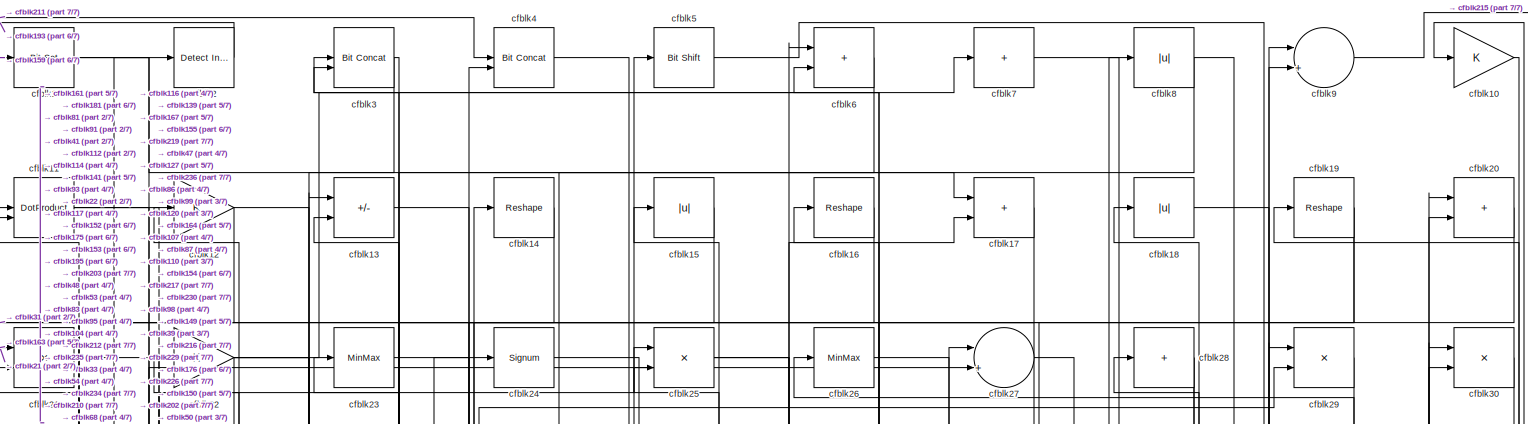
[diagram: root canvas - part 1/7, full width, top band]
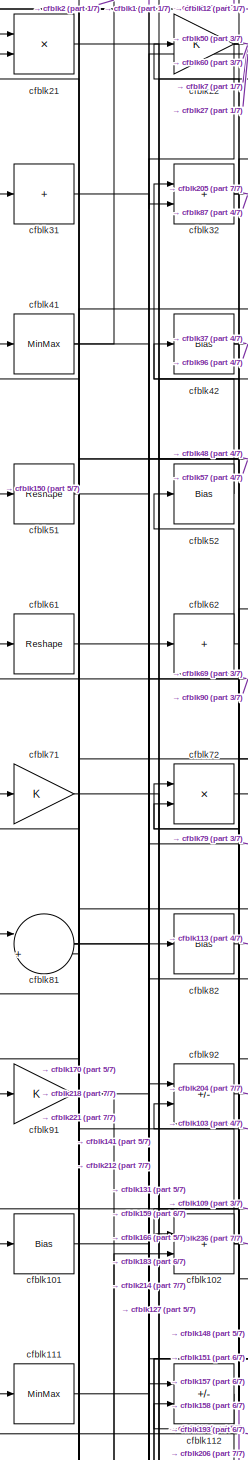
[diagram: root canvas - part 2/7, top left region]
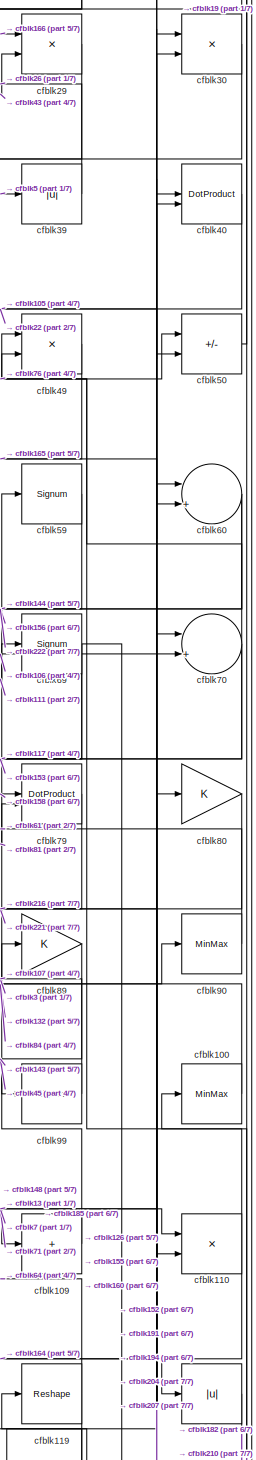
[diagram: root canvas - part 3/7, top right region]
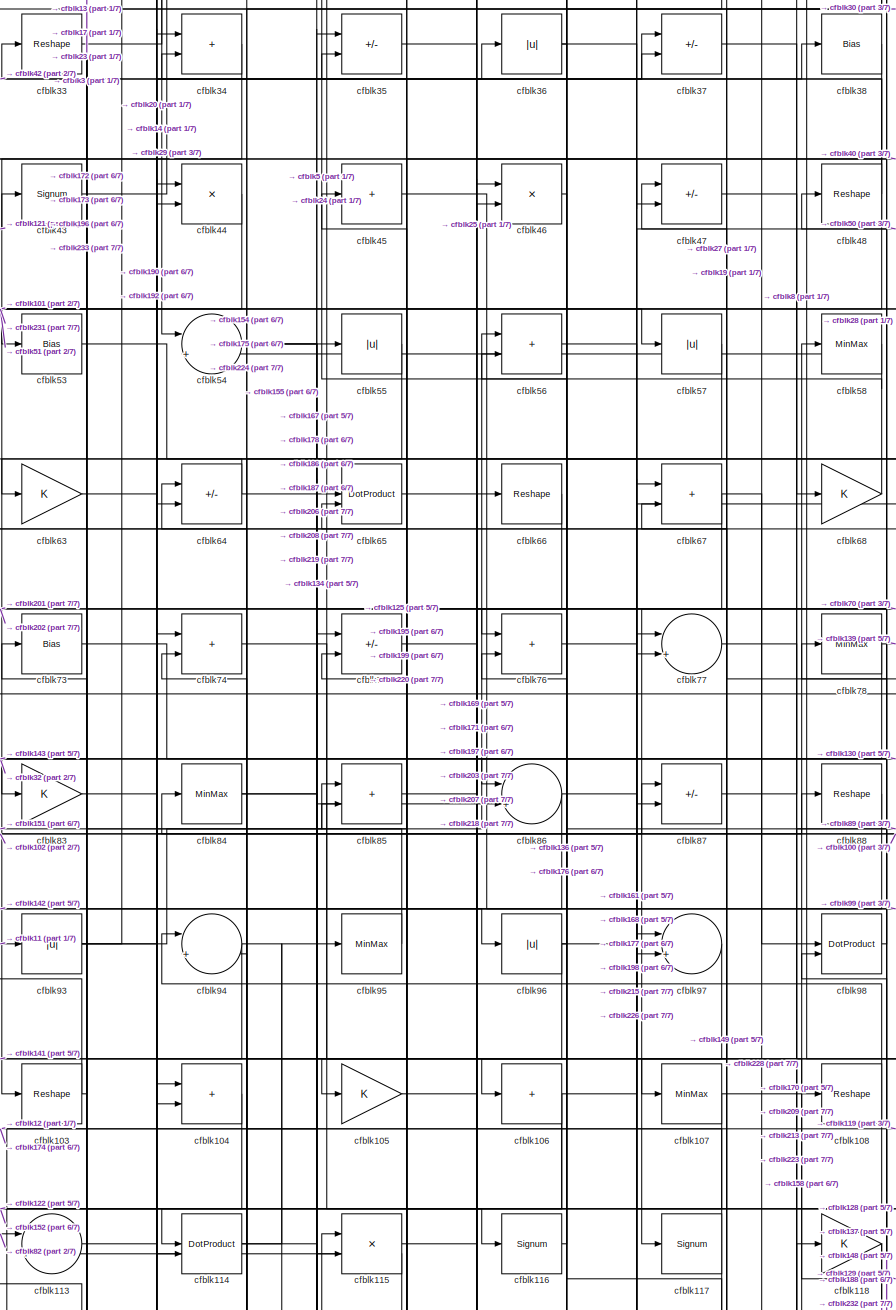
[diagram: root canvas - part 4/7, top center region]
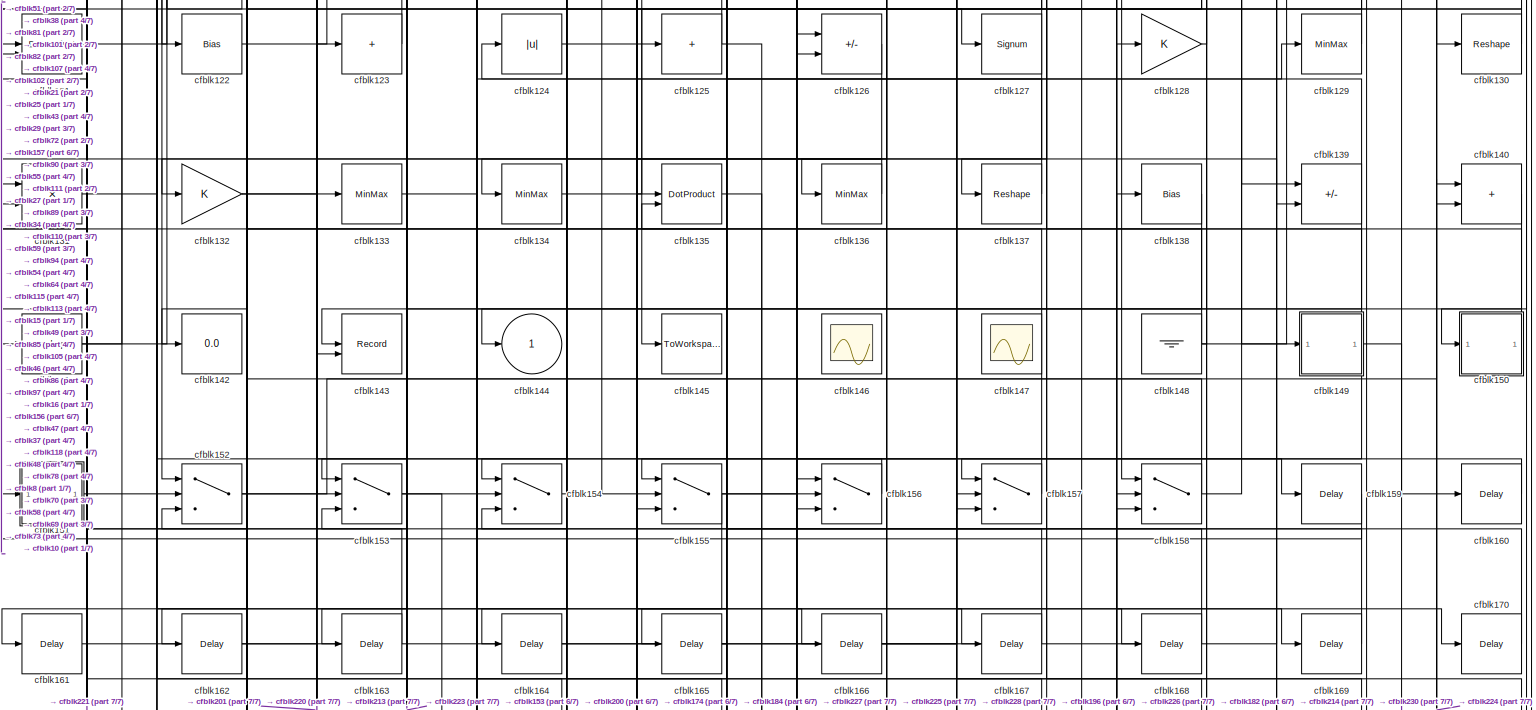
[diagram: root canvas - part 5/7, full width, middle band]
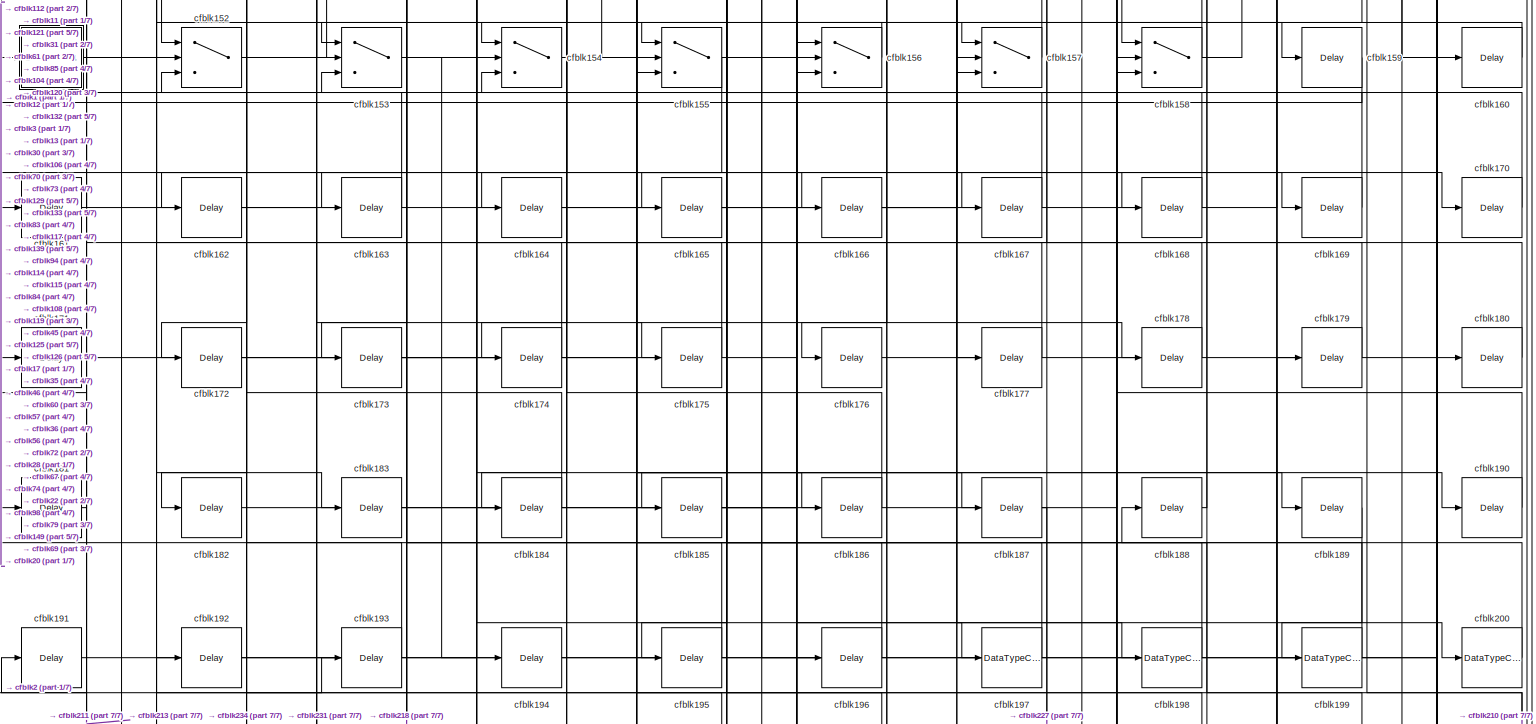
[diagram: root canvas - part 6/7, full width, bottom band]
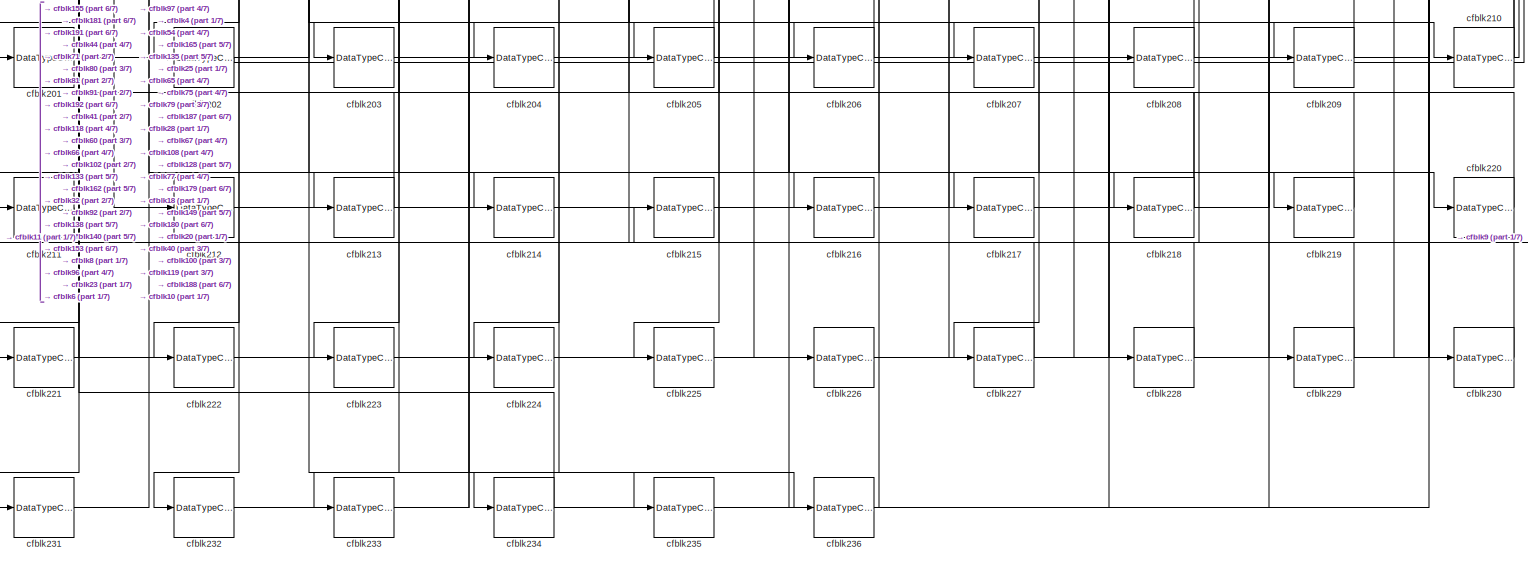
[diagram: root canvas - part 7/7, full width, bottom band]
MODEL slx_545147e29e33
KIND model
CONFIG AbsTol = auto
CONFIG EnableMultiTasking = off
CONFIG FixedStep = auto
CONFIG MaxStep = auto
CONFIG MinStep = auto
CONFIG RelTol = 1e-3
CONFIG SampleTimeConstraint = Unconstrained
CONFIG SolverName = VariableStepAuto
CONFIG StartTime = 0.0
CONFIG StopTime = 10.0
BLOCK [Reference] cfblk1  REF=simulink/Logic and Bit
Operations/Bit Set
  LibrarySourceBlock = hdlsllib/Logic and Bit\nOperations/Bit Set
  SourceBlock = simulink/Logic and Bit\nOperations/Bit Set
  SourceType = Bit Set
BLOCK [Gain] cfblk10
BLOCK [MinMax] cfblk100
BLOCK [Bias] cfblk101
  Bias = 0.0
  SaturateOnIntegerOverflow = off
BLOCK [Sum] cfblk102
  IconShape = rectangular
BLOCK [Reshape] cfblk103
BLOCK [Sum] cfblk104
  IconShape = rectangular
BLOCK [Gain] cfblk105
BLOCK [Sum] cfblk106
  IconShape = rectangular
  Inputs = +
BLOCK [MinMax] cfblk107
BLOCK [Reshape] cfblk108
BLOCK [Sum] cfblk109
  IconShape = rectangular
  Inputs = +
BLOCK [DotProduct] cfblk11
  OutDataTypeStr = Inherit: Inherit via internal rule
BLOCK [Product] cfblk110
  Inputs = */
  RndMeth = Zero
  SaturateOnIntegerOverflow = on
BLOCK [MinMax] cfblk111
BLOCK [Sum] cfblk112
  IconShape = rectangular
  Inputs = +-
BLOCK [Sum] cfblk113
  Inputs = |++
BLOCK [DotProduct] cfblk114
  OutDataTypeStr = Inherit: Inherit via internal rule
BLOCK [Product] cfblk115
  Inputs = */
  RndMeth = Zero
  SaturateOnIntegerOverflow = on
BLOCK [Signum] cfblk116
BLOCK [Signum] cfblk117
BLOCK [Gain] cfblk118
BLOCK [Reshape] cfblk119
BLOCK [Gain] cfblk12
BLOCK [Abs] cfblk120
  SaturateOnIntegerOverflow = off
BLOCK [DotProduct] cfblk121
  OutDataTypeStr = Inherit: Inherit via internal rule
BLOCK [Bias] cfblk122
  Bias = 0.0
  SaturateOnIntegerOverflow = off
BLOCK [Sum] cfblk123
  IconShape = rectangular
  Inputs = +
BLOCK [Abs] cfblk124
  SaturateOnIntegerOverflow = off
BLOCK [Sum] cfblk125
  IconShape = rectangular
  Inputs = +
BLOCK [Sum] cfblk126
  IconShape = rectangular
  Inputs = +-
BLOCK [Signum] cfblk127
BLOCK [Gain] cfblk128
BLOCK [MinMax] cfblk129
BLOCK [Sum] cfblk13
  IconShape = rectangular
  Inputs = +-
BLOCK [Reshape] cfblk130
BLOCK [Product] cfblk131
  Inputs = */
  RndMeth = Zero
  SaturateOnIntegerOverflow = on
BLOCK [Gain] cfblk132
BLOCK [MinMax] cfblk133
BLOCK [MinMax] cfblk134
BLOCK [DotProduct] cfblk135
  OutDataTypeStr = Inherit: Inherit via internal rule
BLOCK [MinMax] cfblk136
BLOCK [Reshape] cfblk137
BLOCK [Bias] cfblk138
  Bias = 0.0
  SaturateOnIntegerOverflow = off
BLOCK [Sum] cfblk139
  IconShape = rectangular
  Inputs = +-
BLOCK [Reshape] cfblk14
BLOCK [Sum] cfblk140
  IconShape = rectangular
BLOCK [Reshape] cfblk141
BLOCK [Display] cfblk142
  Decimation = 1
BLOCK [Record] cfblk143
  CompatibilityTag = XY
  FileSettingsInternal = {"entries":[{"content":{"excelSettings":{"content":{},"type":"Streamout.ExcelSettings"}},"type":"Streamout.FileSettingStorage","uuid":""}],"packageUris":["http:\/\/schema.mathworks.com\/mf0\/streamout_blocks\/R2020a"],"version":"1.0"}
  Layout = [1 1]
  SignalsInternal = {"entries":[{"content":{"signals":[{"content":{"blockPath":[],"dimensions":[1],"domain":"","lineColor":"#a2142f","plots":[1],"port":1,"signalID":3450,"signalName":"XY Graph:1"},"type":"RecordBlkView.Signal","uuid":""},{"content":{"blockPath":[],"dimensions":[1],"domain":"","lineColor":"#139fff","plots":[1],"port":2,"signalID":3453,"signalName":"XY Graph:2"},"type":"RecordBlkView.Signal","uuid":""}...<+146ch>
  VisualizationBindings = {"xyplotplugin":{"info":[{"series":[{"bindingParametersList":[{"parameter":"X-Axis","signalID":3450,"signalName":"XY Graph:1"},{"parameter":"Y-Axis","signalID":3453,"signalName":"XY Graph:2"}],"seriesID":18890}],"subplotID":1}]}}
  st = -1
BLOCK [Outport] cfblk144
  VectorParamsAs1DForOutWhenUnconnected = off
BLOCK [ToWorkspace] cfblk145
  MaxDataPoints = inf
  SampleTime = -1
  SaveFormat = Timeseries
  VariableName = simout
BLOCK [Scope] cfblk146
  Floating = on
  NumInputPorts = 1
  ScopeSpecificationString = Simulink.scopes.TimeScopeBlockCfg('CurrentConfiguration', extmgr.ConfigurationSet(extmgr.Configuration('Core','General UI',true,'FigureColor',[0.156862745098039 0.156862745098039 0.156862745098039]),extmgr.Configuration('Core','Source UI',true),extmgr.Configuration('Sources','WiredSimulink',true,'DataLoggingVariableName','ScopeData1','DataLoggingSaveFormat','StructureWithTime','DataLoggingLimitDat...<+2713ch>
BLOCK [Scope] cfblk147
  Floating = on
  NumInputPorts = 1
  ScopeSpecificationString = Simulink.scopes.TimeScopeBlockCfg('CurrentConfiguration', extmgr.ConfigurationSet(extmgr.Configuration('Core','General UI',true,'FigureColor',[0.156862745098039 0.156862745098039 0.156862745098039]),extmgr.Configuration('Core','Source UI',true),extmgr.Configuration('Sources','WiredSimulink',true,'DataLoggingVariableName','ScopeData1','DataLoggingSaveFormat','StructureWithTime','DataLoggingLimitDat...<+2713ch>
BLOCK [Ground] cfblk148
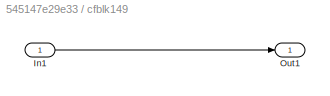
BLOCK [SubSystem] cfblk149
  LibrarySourceBlock = hdlsllib/Ports &\nSubsystems/Subsystem
BLOCK [Inport] cfblk149/In1
BLOCK [Outport] cfblk149/Out1
BLOCK [Abs] cfblk15
  SaturateOnIntegerOverflow = off
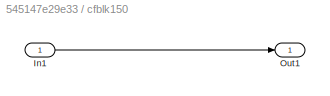
BLOCK [SubSystem] cfblk150
  LibrarySourceBlock = hdlsllib/Ports &\nSubsystems/Subsystem
BLOCK [Inport] cfblk150/In1
BLOCK [Outport] cfblk150/Out1
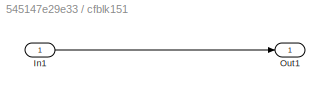
BLOCK [SubSystem] cfblk151
  LibrarySourceBlock = hdlsllib/Ports &\nSubsystems/Subsystem
BLOCK [Inport] cfblk151/In1
BLOCK [Outport] cfblk151/Out1
BLOCK [Switch] cfblk152
  InputSameDT = off
  SaturateOnIntegerOverflow = off
BLOCK [Switch] cfblk153
  InputSameDT = off
  SaturateOnIntegerOverflow = off
BLOCK [Switch] cfblk154
  InputSameDT = off
  SaturateOnIntegerOverflow = off
BLOCK [Switch] cfblk155
  InputSameDT = off
  SaturateOnIntegerOverflow = off
BLOCK [Switch] cfblk156
  InputSameDT = off
  SaturateOnIntegerOverflow = off
BLOCK [Switch] cfblk157
  InputSameDT = off
  SaturateOnIntegerOverflow = off
BLOCK [Switch] cfblk158
  InputSameDT = off
  SaturateOnIntegerOverflow = off
BLOCK [Delay] cfblk159
  InputPortMap = u0
  SampleTime = 1
BLOCK [Reshape] cfblk16
BLOCK [Delay] cfblk160
  InputPortMap = u0
  SampleTime = 1
BLOCK [Delay] cfblk161
  InputPortMap = u0
  SampleTime = 1
BLOCK [Delay] cfblk162
  InputPortMap = u0
  SampleTime = 1
BLOCK [Delay] cfblk163
  InputPortMap = u0
  SampleTime = 1
BLOCK [Delay] cfblk164
  InputPortMap = u0
  SampleTime = 1
BLOCK [Delay] cfblk165
  InputPortMap = u0
  SampleTime = 1
BLOCK [Delay] cfblk166
  InputPortMap = u0
  SampleTime = 1
BLOCK [Delay] cfblk167
  InputPortMap = u0
  SampleTime = 1
BLOCK [Delay] cfblk168
  InputPortMap = u0
  SampleTime = 1
BLOCK [Delay] cfblk169
  InputPortMap = u0
  SampleTime = 1
BLOCK [Sum] cfblk17
  IconShape = rectangular
BLOCK [Delay] cfblk170
  InputPortMap = u0
  SampleTime = 1
BLOCK [Delay] cfblk171
  InputPortMap = u0
  SampleTime = 1
BLOCK [Delay] cfblk172
  InputPortMap = u0
  SampleTime = 1
BLOCK [Delay] cfblk173
  InputPortMap = u0
  SampleTime = 1
BLOCK [Delay] cfblk174
  InputPortMap = u0
  SampleTime = 1
BLOCK [Delay] cfblk175
  InputPortMap = u0
  SampleTime = 1
BLOCK [Delay] cfblk176
  InputPortMap = u0
  SampleTime = 1
BLOCK [Delay] cfblk177
  InputPortMap = u0
  SampleTime = 1
BLOCK [Delay] cfblk178
  InputPortMap = u0
  SampleTime = 1
BLOCK [Delay] cfblk179
  InputPortMap = u0
  SampleTime = 1
BLOCK [Abs] cfblk18
  SaturateOnIntegerOverflow = off
BLOCK [Delay] cfblk180
  InputPortMap = u0
  SampleTime = 1
BLOCK [Delay] cfblk181
  InputPortMap = u0
  SampleTime = 1
BLOCK [Delay] cfblk182
  InputPortMap = u0
  SampleTime = 1
BLOCK [Delay] cfblk183
  InputPortMap = u0
  SampleTime = 1
BLOCK [Delay] cfblk184
  InputPortMap = u0
  SampleTime = 1
BLOCK [Delay] cfblk185
  InputPortMap = u0
  SampleTime = 1
BLOCK [Delay] cfblk186
  InputPortMap = u0
  SampleTime = 1
BLOCK [Delay] cfblk187
  InputPortMap = u0
  SampleTime = 1
BLOCK [Delay] cfblk188
  InputPortMap = u0
  SampleTime = 1
BLOCK [Delay] cfblk189
  InputPortMap = u0
  SampleTime = 1
BLOCK [Reshape] cfblk19
BLOCK [Delay] cfblk190
  InputPortMap = u0
  SampleTime = 1
BLOCK [Delay] cfblk191
  InputPortMap = u0
  SampleTime = 1
BLOCK [Delay] cfblk192
  InputPortMap = u0
  SampleTime = 1
BLOCK [Delay] cfblk193
  InputPortMap = u0
  SampleTime = 1
BLOCK [Delay] cfblk194
  InputPortMap = u0
  SampleTime = 1
BLOCK [Delay] cfblk195
  InputPortMap = u0
  SampleTime = 1
BLOCK [Delay] cfblk196
  InputPortMap = u0
  SampleTime = 1
BLOCK [DataTypeConversion] cfblk197
  OutDataTypeStr = uint8
  RndMeth = Floor
  SaturateOnIntegerOverflow = off
BLOCK [DataTypeConversion] cfblk198
  OutDataTypeStr = uint8
  RndMeth = Floor
  SaturateOnIntegerOverflow = off
BLOCK [DataTypeConversion] cfblk199
  OutDataTypeStr = uint8
  RndMeth = Floor
  SaturateOnIntegerOverflow = off
BLOCK [Reference] cfblk2  REF=simulink/Logic and Bit
Operations/Detect
Increase
  LibrarySourceBlock = hdlsllib/Logic and Bit\nOperations/Detect\nIncrease
  SourceBlock = simulink/Logic and Bit\nOperations/Detect\nIncrease
  SourceType = Detect Increase
BLOCK [Sum] cfblk20
  IconShape = rectangular
BLOCK [DataTypeConversion] cfblk200
  OutDataTypeStr = uint8
  RndMeth = Floor
  SaturateOnIntegerOverflow = off
BLOCK [DataTypeConversion] cfblk201
  OutDataTypeStr = uint8
  RndMeth = Floor
  SaturateOnIntegerOverflow = off
BLOCK [DataTypeConversion] cfblk202
  OutDataTypeStr = uint8
  RndMeth = Floor
  SaturateOnIntegerOverflow = off
BLOCK [DataTypeConversion] cfblk203
  OutDataTypeStr = uint8
  RndMeth = Floor
  SaturateOnIntegerOverflow = off
BLOCK [DataTypeConversion] cfblk204
  OutDataTypeStr = uint8
  RndMeth = Floor
  SaturateOnIntegerOverflow = off
BLOCK [DataTypeConversion] cfblk205
  OutDataTypeStr = uint8
  RndMeth = Floor
  SaturateOnIntegerOverflow = off
BLOCK [DataTypeConversion] cfblk206
  OutDataTypeStr = uint8
  RndMeth = Floor
  SaturateOnIntegerOverflow = off
BLOCK [DataTypeConversion] cfblk207
  OutDataTypeStr = uint8
  RndMeth = Floor
  SaturateOnIntegerOverflow = off
BLOCK [DataTypeConversion] cfblk208
  OutDataTypeStr = uint8
  RndMeth = Floor
  SaturateOnIntegerOverflow = off
BLOCK [DataTypeConversion] cfblk209
  OutDataTypeStr = uint8
  RndMeth = Floor
  SaturateOnIntegerOverflow = off
BLOCK [Product] cfblk21
  Inputs = */
  RndMeth = Zero
  SaturateOnIntegerOverflow = on
BLOCK [DataTypeConversion] cfblk210
  RndMeth = Floor
  SaturateOnIntegerOverflow = off
BLOCK [DataTypeConversion] cfblk211
  OutDataTypeStr = uint8
  RndMeth = Floor
  SaturateOnIntegerOverflow = off
BLOCK [DataTypeConversion] cfblk212
  OutDataTypeStr = uint8
  RndMeth = Floor
  SaturateOnIntegerOverflow = off
BLOCK [DataTypeConversion] cfblk213
  RndMeth = Floor
  SaturateOnIntegerOverflow = off
BLOCK [DataTypeConversion] cfblk214
  OutDataTypeStr = uint8
  RndMeth = Floor
  SaturateOnIntegerOverflow = off
BLOCK [DataTypeConversion] cfblk215
  OutDataTypeStr = uint8
  RndMeth = Floor
  SaturateOnIntegerOverflow = off
BLOCK [DataTypeConversion] cfblk216
  OutDataTypeStr = uint8
  RndMeth = Floor
  SaturateOnIntegerOverflow = off
BLOCK [DataTypeConversion] cfblk217
  OutDataTypeStr = uint8
  RndMeth = Floor
  SaturateOnIntegerOverflow = off
BLOCK [DataTypeConversion] cfblk218
  RndMeth = Floor
  SaturateOnIntegerOverflow = off
BLOCK [DataTypeConversion] cfblk219
  OutDataTypeStr = uint8
  RndMeth = Floor
  SaturateOnIntegerOverflow = off
BLOCK [Gain] cfblk22
BLOCK [DataTypeConversion] cfblk220
  OutDataTypeStr = uint8
  RndMeth = Floor
  SaturateOnIntegerOverflow = off
BLOCK [DataTypeConversion] cfblk221
  RndMeth = Floor
  SaturateOnIntegerOverflow = off
BLOCK [DataTypeConversion] cfblk222
  OutDataTypeStr = uint8
  RndMeth = Floor
  SaturateOnIntegerOverflow = off
BLOCK [DataTypeConversion] cfblk223
  OutDataTypeStr = uint8
  RndMeth = Floor
  SaturateOnIntegerOverflow = off
BLOCK [DataTypeConversion] cfblk224
  OutDataTypeStr = uint8
  RndMeth = Floor
  SaturateOnIntegerOverflow = off
BLOCK [DataTypeConversion] cfblk225
  OutDataTypeStr = uint8
  RndMeth = Floor
  SaturateOnIntegerOverflow = off
BLOCK [DataTypeConversion] cfblk226
  RndMeth = Floor
  SaturateOnIntegerOverflow = off
BLOCK [DataTypeConversion] cfblk227
  OutDataTypeStr = uint8
  RndMeth = Floor
  SaturateOnIntegerOverflow = off
BLOCK [DataTypeConversion] cfblk228
  OutDataTypeStr = uint8
  RndMeth = Floor
  SaturateOnIntegerOverflow = off
BLOCK [DataTypeConversion] cfblk229
  OutDataTypeStr = uint8
  RndMeth = Floor
  SaturateOnIntegerOverflow = off
BLOCK [MinMax] cfblk23
BLOCK [DataTypeConversion] cfblk230
  OutDataTypeStr = uint8
  RndMeth = Floor
  SaturateOnIntegerOverflow = off
BLOCK [DataTypeConversion] cfblk231
  OutDataTypeStr = uint8
  RndMeth = Floor
  SaturateOnIntegerOverflow = off
BLOCK [DataTypeConversion] cfblk232
  OutDataTypeStr = uint8
  RndMeth = Floor
  SaturateOnIntegerOverflow = off
BLOCK [DataTypeConversion] cfblk233
  OutDataTypeStr = uint8
  RndMeth = Floor
  SaturateOnIntegerOverflow = off
BLOCK [DataTypeConversion] cfblk234
  RndMeth = Floor
  SaturateOnIntegerOverflow = off
BLOCK [DataTypeConversion] cfblk235
  OutDataTypeStr = uint8
  RndMeth = Floor
  SaturateOnIntegerOverflow = off
BLOCK [DataTypeConversion] cfblk236
  OutDataTypeStr = uint8
  RndMeth = Floor
  SaturateOnIntegerOverflow = off
BLOCK [Signum] cfblk24
BLOCK [Product] cfblk25
  Inputs = */
  RndMeth = Zero
  SaturateOnIntegerOverflow = on
BLOCK [MinMax] cfblk26
BLOCK [Sum] cfblk27
  Inputs = |++
BLOCK [Sum] cfblk28
  IconShape = rectangular
  Inputs = +
BLOCK [Product] cfblk29
  Inputs = */
  RndMeth = Zero
  SaturateOnIntegerOverflow = on
BLOCK [Reference] cfblk3  REF=hdlsllib/Logic and Bit
Operations/Bit Concat
  SourceBlock = hdlsllib/Logic and Bit\nOperations/Bit Concat
  SourceType = Bit Concat
BLOCK [Product] cfblk30
  Inputs = */
  RndMeth = Zero
  SaturateOnIntegerOverflow = on
BLOCK [Sum] cfblk31
  IconShape = rectangular
  Inputs = +
BLOCK [Sum] cfblk32
  IconShape = rectangular
BLOCK [Reshape] cfblk33
BLOCK [Sum] cfblk34
  IconShape = rectangular
BLOCK [Sum] cfblk35
  IconShape = rectangular
  Inputs = +-
BLOCK [Abs] cfblk36
  SaturateOnIntegerOverflow = off
BLOCK [Sum] cfblk37
  IconShape = rectangular
  Inputs = +-
BLOCK [Bias] cfblk38
  Bias = 0.0
  SaturateOnIntegerOverflow = off
BLOCK [Abs] cfblk39
  SaturateOnIntegerOverflow = off
BLOCK [Reference] cfblk4  REF=hdlsllib/Logic and Bit
Operations/Bit Concat
  SourceBlock = hdlsllib/Logic and Bit\nOperations/Bit Concat
  SourceType = Bit Concat
BLOCK [DotProduct] cfblk40
  OutDataTypeStr = Inherit: Inherit via internal rule
BLOCK [MinMax] cfblk41
BLOCK [Bias] cfblk42
  Bias = 0.0
  SaturateOnIntegerOverflow = off
BLOCK [Signum] cfblk43
BLOCK [Product] cfblk44
  Inputs = */
  RndMeth = Zero
  SaturateOnIntegerOverflow = on
BLOCK [Sum] cfblk45
  IconShape = rectangular
  Inputs = +
BLOCK [Product] cfblk46
  Inputs = */
  RndMeth = Zero
  SaturateOnIntegerOverflow = on
BLOCK [Sum] cfblk47
  IconShape = rectangular
  Inputs = +-
BLOCK [Reshape] cfblk48
BLOCK [Product] cfblk49
  Inputs = */
  RndMeth = Zero
  SaturateOnIntegerOverflow = on
BLOCK [Reference] cfblk5  REF=hdlsllib/Logic and Bit
Operations/Bit Shift
  SourceBlock = hdlsllib/Logic and Bit\nOperations/Bit Shift
  SourceType = Bit Shift
BLOCK [Sum] cfblk50
  IconShape = rectangular
  Inputs = +-
BLOCK [Reshape] cfblk51
BLOCK [Bias] cfblk52
  Bias = 0.0
  SaturateOnIntegerOverflow = off
BLOCK [Bias] cfblk53
  Bias = 0.0
  SaturateOnIntegerOverflow = off
BLOCK [Sum] cfblk54
  Inputs = |++
BLOCK [Abs] cfblk55
  SaturateOnIntegerOverflow = off
BLOCK [Sum] cfblk56
  IconShape = rectangular
BLOCK [Abs] cfblk57
  SaturateOnIntegerOverflow = off
BLOCK [MinMax] cfblk58
BLOCK [Signum] cfblk59
BLOCK [Sum] cfblk6
  IconShape = rectangular
BLOCK [Sum] cfblk60
  Inputs = |++
BLOCK [Reshape] cfblk61
BLOCK [Sum] cfblk62
  IconShape = rectangular
  Inputs = +
BLOCK [Gain] cfblk63
BLOCK [Sum] cfblk64
  IconShape = rectangular
  Inputs = +-
BLOCK [DotProduct] cfblk65
  OutDataTypeStr = Inherit: Inherit via internal rule
BLOCK [Reshape] cfblk66
BLOCK [Sum] cfblk67
  IconShape = rectangular
BLOCK [Gain] cfblk68
BLOCK [Signum] cfblk69
BLOCK [Sum] cfblk7
  IconShape = rectangular
  Inputs = +
BLOCK [Sum] cfblk70
  Inputs = |++
BLOCK [Gain] cfblk71
BLOCK [Product] cfblk72
  Inputs = */
  RndMeth = Zero
  SaturateOnIntegerOverflow = on
BLOCK [Bias] cfblk73
  Bias = 0.0
  SaturateOnIntegerOverflow = off
BLOCK [Sum] cfblk74
  IconShape = rectangular
BLOCK [Sum] cfblk75
  IconShape = rectangular
  Inputs = +-
BLOCK [Sum] cfblk76
  IconShape = rectangular
BLOCK [Sum] cfblk77
  Inputs = |++
BLOCK [MinMax] cfblk78
BLOCK [DotProduct] cfblk79
  OutDataTypeStr = Inherit: Inherit via internal rule
BLOCK [Abs] cfblk8
  SaturateOnIntegerOverflow = off
BLOCK [Gain] cfblk80
BLOCK [Sum] cfblk81
  Inputs = |++
BLOCK [Bias] cfblk82
  Bias = 0.0
  SaturateOnIntegerOverflow = off
BLOCK [Gain] cfblk83
BLOCK [MinMax] cfblk84
BLOCK [Sum] cfblk85
  IconShape = rectangular
BLOCK [Sum] cfblk86
  Inputs = |++
BLOCK [Sum] cfblk87
  IconShape = rectangular
  Inputs = +-
BLOCK [Reshape] cfblk88
BLOCK [Gain] cfblk89
BLOCK [Sum] cfblk9
  Inputs = |++
BLOCK [MinMax] cfblk90
BLOCK [Gain] cfblk91
BLOCK [Sum] cfblk92
  IconShape = rectangular
  Inputs = +-
BLOCK [Abs] cfblk93
  SaturateOnIntegerOverflow = off
BLOCK [Sum] cfblk94
  Inputs = |++
BLOCK [MinMax] cfblk95
BLOCK [Abs] cfblk96
  SaturateOnIntegerOverflow = off
BLOCK [Sum] cfblk97
  Inputs = |++
BLOCK [DotProduct] cfblk98
  OutDataTypeStr = Inherit: Inherit via internal rule
BLOCK [Signum] cfblk99
LINE cfblk100:1 -> cfblk84:1
LINE cfblk101:1 -> cfblk166:1
NET cfblk102:1 -> cfblk236:1, cfblk41:1, cfblk87:1
NET cfblk103:1 -> cfblk33:1, cfblk42:1
LINE cfblk104:1 -> cfblk152:1
LINE cfblk105:1 -> cfblk169:1
NET cfblk106:1 -> cfblk172:1, cfblk173:1, cfblk70:2
NET cfblk107:1 -> cfblk122:1, cfblk89:1
NET cfblk108:1 -> cfblk195:1, cfblk94:1
LINE cfblk109:1 -> cfblk59:1
LINE cfblk10:1 -> cfblk150:1
NET cfblk110:1 -> cfblk164:1, cfblk49:1
LINE cfblk111:1 -> cfblk69:1
LINE cfblk112:1 -> cfblk151:1
LINE cfblk113:1 -> cfblk36:1
NET cfblk114:1 -> cfblk178:1, cfblk95:1
LINE cfblk115:1 -> cfblk38:1
LINE cfblk116:1 -> cfblk56:2
NET cfblk117:1 -> cfblk12:1, cfblk174:1
NET cfblk118:1 -> cfblk137:1, cfblk232:1
NET cfblk119:1 -> cfblk185:1, cfblk64:1
NET cfblk11:1 -> cfblk114:2, cfblk93:1
LINE cfblk120:1 -> cfblk182:1
LINE cfblk121:1 -> cfblk43:1
LINE cfblk122:1 -> cfblk55:1
LINE cfblk123:1 -> cfblk111:1
LINE cfblk124:1 -> cfblk145:1
NET cfblk125:1 -> cfblk113:2, cfblk196:1
LINE cfblk126:1 -> cfblk131:1
NET cfblk127:1 -> cfblk162:1, cfblk16:1
LINE cfblk128:1 -> cfblk48:1
LINE cfblk129:1 -> cfblk58:1
NET cfblk12:1 -> cfblk175:1, cfblk91:1
LINE cfblk130:1 -> cfblk125:1
LINE cfblk131:1 -> cfblk82:1
NET cfblk132:1 -> cfblk157:3, cfblk90:1
LINE cfblk133:1 -> cfblk200:1
LINE cfblk134:1 -> cfblk115:1
LINE cfblk135:1 -> cfblk226:1
LINE cfblk136:1 -> cfblk134:1
LINE cfblk137:1 -> cfblk124:1
LINE cfblk138:1 -> cfblk213:1
NET cfblk139:1 -> cfblk15:1, cfblk184:1
LINE cfblk13:1 -> cfblk110:2
LINE cfblk140:1 -> cfblk223:1
NET cfblk141:1 -> cfblk102:2, cfblk25:1
NET cfblk148:1 -> cfblk70:1, cfblk72:2, cfblk78:1
LINE cfblk149/In1:1 -> cfblk149/Out1:1
NET cfblk149:1 -> cfblk156:3, cfblk230:1, cfblk47:1
LINE cfblk14:1 -> cfblk54:1
LINE cfblk150/In1:1 -> cfblk150/Out1:1
LINE cfblk150:1 -> cfblk51:1
LINE cfblk151/In1:1 -> cfblk151/Out1:1
LINE cfblk151:1 -> cfblk85:1
NET cfblk152:1 -> cfblk13:1, cfblk30:2
NET cfblk153:1 -> cfblk129:1, cfblk194:1
LINE cfblk154:1 -> cfblk74:2
NET cfblk155:1 -> cfblk17:2, cfblk189:1, cfblk211:1
LINE cfblk156:1 -> cfblk155:1
LINE cfblk157:1 -> cfblk72:1
NET cfblk158:1 -> cfblk22:1, cfblk79:1
LINE cfblk159:1 -> cfblk1:1
LINE cfblk15:1 -> cfblk31:1
LINE cfblk160:1 -> cfblk157:1
LINE cfblk161:1 -> cfblk97:1
LINE cfblk162:1 -> cfblk220:1
LINE cfblk163:1 -> cfblk131:2
LINE cfblk164:1 -> cfblk27:1
LINE cfblk165:1 -> cfblk225:1
LINE cfblk166:1 -> cfblk29:1
LINE cfblk167:1 -> cfblk25:2
LINE cfblk168:1 -> cfblk34:1
LINE cfblk169:1 -> cfblk85:2
LINE cfblk16:1 -> cfblk161:1
LINE cfblk170:1 -> cfblk81:2
LINE cfblk171:1 -> cfblk46:1
LINE cfblk172:1 -> cfblk154:2
LINE cfblk173:1 -> cfblk115:2
LINE cfblk174:1 -> cfblk121:2
LINE cfblk175:1 -> cfblk94:2
LINE cfblk176:1 -> cfblk20:1
LINE cfblk177:1 -> cfblk74:1
LINE cfblk178:1 -> cfblk67:2
LINE cfblk179:1 -> cfblk152:2
LINE cfblk17:1 -> cfblk83:1
LINE cfblk180:1 -> cfblk157:2
LINE cfblk181:1 -> cfblk11:2
LINE cfblk182:1 -> cfblk126:1
LINE cfblk183:1 -> cfblk156:1
LINE cfblk184:1 -> cfblk152:3
LINE cfblk185:1 -> cfblk158:3
LINE cfblk186:1 -> cfblk154:3
LINE cfblk187:1 -> cfblk227:1
LINE cfblk188:1 -> cfblk98:2
LINE cfblk189:1 -> cfblk199:1
LINE cfblk18:1 -> cfblk229:1
LINE cfblk190:1 -> cfblk158:2
LINE cfblk191:1 -> cfblk30:1
LINE cfblk192:1 -> cfblk104:1
LINE cfblk193:1 -> cfblk112:2
LINE cfblk194:1 -> cfblk60:1
LINE cfblk195:1 -> cfblk3:2
LINE cfblk196:1 -> cfblk73:1
LINE cfblk197:1 -> cfblk45:1
LINE cfblk198:1 -> cfblk35:1
LINE cfblk199:1 -> cfblk35:2
NET cfblk19:1 -> cfblk107:1, cfblk86:1
NET cfblk1:1 -> cfblk112:1, cfblk17:1
LINE cfblk200:1 -> cfblk171:1
LINE cfblk201:1 -> cfblk133:1
LINE cfblk202:1 -> cfblk10:1
LINE cfblk203:1 -> cfblk66:1
LINE cfblk204:1 -> cfblk40:2
LINE cfblk205:1 -> cfblk92:1
LINE cfblk206:1 -> cfblk92:2
LINE cfblk207:1 -> cfblk40:1
LINE cfblk208:1 -> cfblk75:1
LINE cfblk209:1 -> cfblk75:2
LINE cfblk20:1 -> cfblk104:2
NET cfblk210:1 -> cfblk100:1, cfblk119:1, cfblk188:1
LINE cfblk211:1 -> cfblk4:1
LINE cfblk212:1 -> cfblk4:2
NET cfblk213:1 -> cfblk118:1, cfblk191:1
LINE cfblk214:1 -> cfblk138:1
LINE cfblk215:1 -> cfblk77:1
LINE cfblk216:1 -> cfblk9:1
LINE cfblk217:1 -> cfblk9:2
NET cfblk218:1 -> cfblk153:3, cfblk81:1
LINE cfblk219:1 -> cfblk65:1
LINE cfblk21:1 -> cfblk127:1
LINE cfblk220:1 -> cfblk65:2
NET cfblk221:1 -> cfblk128:1, cfblk71:1
LINE cfblk222:1 -> cfblk80:1
LINE cfblk223:1 -> cfblk108:1
LINE cfblk224:1 -> cfblk140:1
LINE cfblk225:1 -> cfblk140:2
NET cfblk226:1 -> cfblk20:2, cfblk77:2
LINE cfblk227:1 -> cfblk135:1
LINE cfblk228:1 -> cfblk135:2
LINE cfblk229:1 -> cfblk11:1
NET cfblk22:1 -> cfblk32:2, cfblk50:2, cfblk60:2, cfblk7:1
LINE cfblk230:1 -> cfblk18:1
LINE cfblk231:1 -> cfblk192:1
LINE cfblk232:1 -> cfblk44:1
LINE cfblk233:1 -> cfblk44:2
NET cfblk234:1 -> cfblk179:1, cfblk180:1, cfblk181:1, cfblk208:1
LINE cfblk235:1 -> cfblk6:1
LINE cfblk236:1 -> cfblk6:2
LINE cfblk23:1 -> cfblk235:1
LINE cfblk24:1 -> cfblk116:1
NET cfblk25:1 -> cfblk219:1, cfblk47:2
LINE cfblk26:1 -> cfblk120:1
NET cfblk27:1 -> cfblk163:1, cfblk21:1, cfblk98:1
NET cfblk28:1 -> cfblk154:1, cfblk217:1
LINE cfblk29:1 -> cfblk132:1
LINE cfblk2:1 -> cfblk193:1
LINE cfblk30:1 -> cfblk106:1
LINE cfblk31:1 -> cfblk183:1
NET cfblk32:1 -> cfblk205:1, cfblk87:2
LINE cfblk33:1 -> cfblk14:1
LINE cfblk34:1 -> cfblk103:1
LINE cfblk35:1 -> cfblk197:1
NET cfblk36:1 -> cfblk198:1, cfblk76:1
LINE cfblk37:1 -> cfblk170:1
LINE cfblk38:1 -> cfblk121:1
LINE cfblk39:1 -> cfblk26:1
NET cfblk3:1 -> cfblk153:2, cfblk53:1
LINE cfblk40:1 -> cfblk105:1
NET cfblk41:1 -> cfblk214:1, cfblk2:1
NET cfblk42:1 -> cfblk37:1, cfblk96:1
LINE cfblk43:1 -> cfblk29:2
LINE cfblk44:1 -> cfblk231:1
LINE cfblk45:1 -> cfblk99:1
LINE cfblk46:1 -> cfblk136:1
LINE cfblk47:1 -> cfblk68:1
NET cfblk48:1 -> cfblk101:1, cfblk13:2, cfblk34:2
LINE cfblk49:1 -> cfblk165:1
LINE cfblk4:1 -> cfblk210:1
LINE cfblk50:1 -> cfblk19:1
LINE cfblk51:1 -> cfblk57:1
LINE cfblk52:1 -> cfblk32:1
LINE cfblk53:1 -> cfblk97:2
NET cfblk54:1 -> cfblk167:1, cfblk206:1, cfblk86:2
LINE cfblk55:1 -> cfblk64:2
LINE cfblk56:1 -> cfblk177:1
LINE cfblk57:1 -> cfblk176:1
LINE cfblk58:1 -> cfblk54:2
LINE cfblk59:1 -> cfblk144:1
LINE cfblk5:1 -> cfblk39:1
NET cfblk60:1 -> cfblk156:2, cfblk222:1
LINE cfblk61:1 -> cfblk159:1
NET cfblk62:1 -> cfblk102:1, cfblk52:1
LINE cfblk63:1 -> cfblk37:2
NET cfblk64:1 -> cfblk139:2, cfblk63:1
LINE cfblk65:1 -> cfblk218:1
LINE cfblk66:1 -> cfblk202:1
NET cfblk67:1 -> cfblk201:1, cfblk228:1
LINE cfblk68:1 -> cfblk5:1
NET cfblk69:1 -> cfblk126:2, cfblk155:3, cfblk160:1
LINE cfblk6:1 -> cfblk234:1
NET cfblk70:1 -> cfblk117:1, cfblk153:1, cfblk49:2
LINE cfblk71:1 -> cfblk109:1
LINE cfblk72:1 -> cfblk123:1
LINE cfblk73:1 -> cfblk130:1
LINE cfblk74:1 -> cfblk158:1
LINE cfblk75:1 -> cfblk207:1
LINE cfblk76:1 -> cfblk50:1
LINE cfblk77:1 -> cfblk209:1
NET cfblk78:1 -> cfblk139:1, cfblk143:2
LINE cfblk79:1 -> cfblk216:1
LINE cfblk7:1 -> cfblk110:1
LINE cfblk80:1 -> cfblk221:1
NET cfblk81:1 -> cfblk21:2, cfblk27:2, cfblk79:2
LINE cfblk82:1 -> cfblk113:1
LINE cfblk83:1 -> cfblk190:1
NET cfblk84:1 -> cfblk186:1, cfblk187:1
LINE cfblk85:1 -> cfblk46:2
NET cfblk86:1 -> cfblk142:1, cfblk168:1
LINE cfblk87:1 -> cfblk8:1
LINE cfblk88:1 -> cfblk114:1
LINE cfblk89:1 -> cfblk143:1
NET cfblk8:1 -> cfblk149:1, cfblk203:1
LINE cfblk90:1 -> cfblk61:1
NET cfblk91:1 -> cfblk212:1, cfblk62:1
LINE cfblk92:1 -> cfblk204:1
NET cfblk93:1 -> cfblk24:1, cfblk56:1, cfblk88:1
NET cfblk94:1 -> cfblk141:1, cfblk155:2
LINE cfblk95:1 -> cfblk23:1
NET cfblk96:1 -> cfblk233:1, cfblk67:1, cfblk76:2
LINE cfblk97:1 -> cfblk224:1
LINE cfblk98:1 -> cfblk28:1
LINE cfblk99:1 -> cfblk3:1
LINE cfblk9:1 -> cfblk215:1
note: NET lines group one-source signal fan-out (src -> all destinations, sorted); 1:1 wires keep LINE
